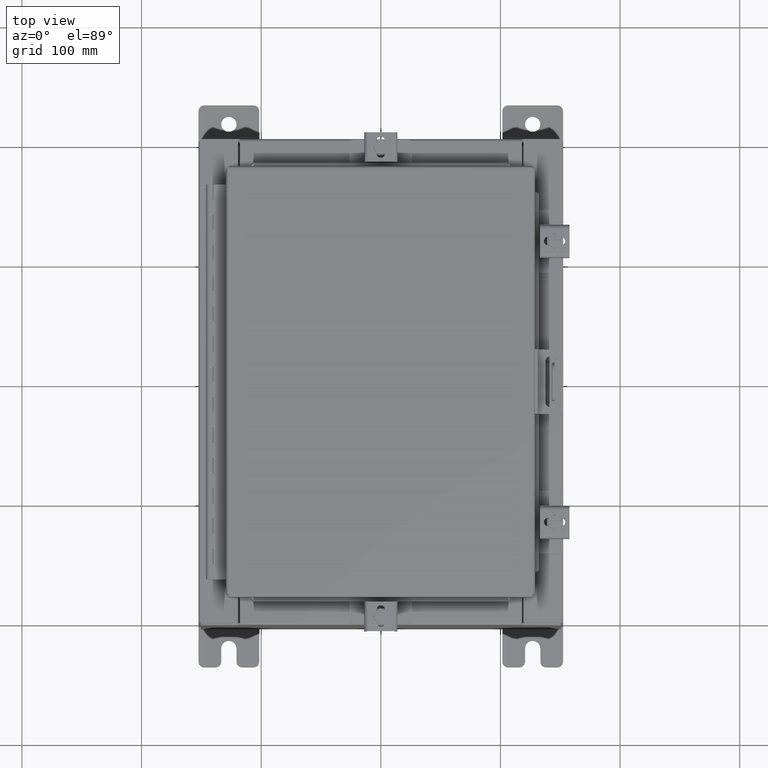
[diagram: clean part render]
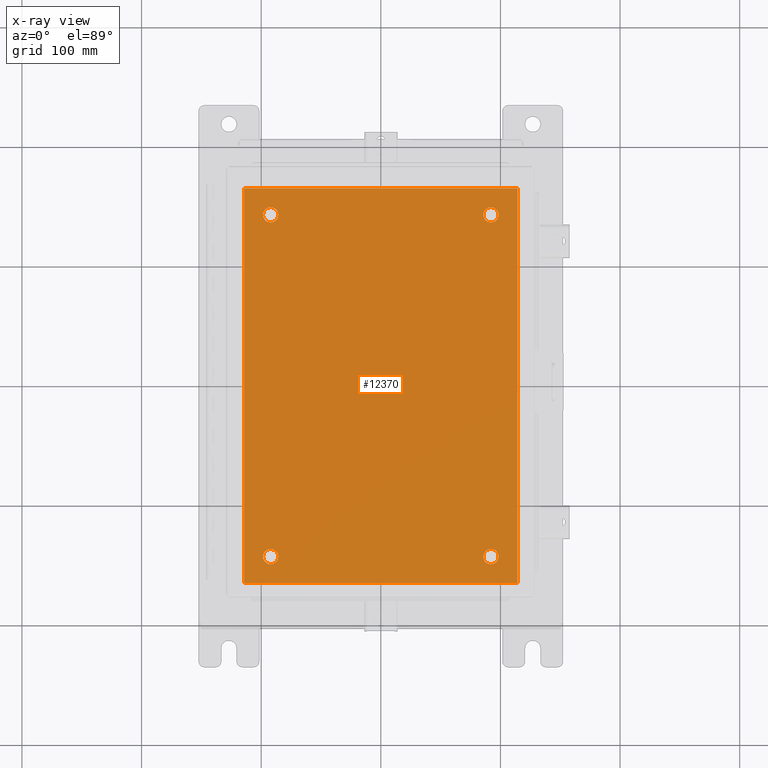
[diagram: x-ray — body ghosted, one internal face saturated and labeled with its STEP entity id]
A machine part, top view, then the same camera in x-ray: the body is ghosted and one INTERNAL B-rep face — a face not visible from any outside direction — is saturated and labeled: STEP entity #12370.
In plain terms, the highlighted planar face has unit normal (0, 0, -1).
Its self-contained STEP definition (entity closure, byte-faithful):
#40 = ORIENTED_EDGE ( 'NONE', *, *, #11947, .T. ) ;
#561 = VERTEX_POINT ( 'NONE', #6362 ) ;
#918 = AXIS2_PLACEMENT_3D ( 'NONE', #21486, #14044, #1993 ) ;
#1088 = CARTESIAN_POINT ( 'NONE',  ( 3.375000000000001800, 5.625000000000003600, -0.1039999999999999800 ) ) ;
#1142 = LINE ( 'NONE', #10221, #16573 ) ;
#1341 = EDGE_LOOP ( 'NONE', ( #40, #19938 ) ) ;
#1547 = CARTESIAN_POINT ( 'NONE',  ( 4.500000000000001800, -6.499999999999999100, -0.1039999999999999800 ) ) ;
#1993 = DIRECTION ( 'NONE',  ( -1.000000000000000000, 0.0000000000000000000, 0.0000000000000000000 ) ) ;
#2462 = ORIENTED_EDGE ( 'NONE', *, *, #8841, .F. ) ;
#2966 = CARTESIAN_POINT ( 'NONE',  ( 3.625000000000000400, 5.625000000000003600, -0.1039999999999999800 ) ) ;
#3560 = AXIS2_PLACEMENT_3D ( 'NONE', #10945, #24986, #12961 ) ;
#3732 = EDGE_LOOP ( 'NONE', ( #24709, #9158 ) ) ;
#3984 = VECTOR ( 'NONE', #7359, 39.37007874015748100 ) ;
#4015 = CARTESIAN_POINT ( 'NONE',  ( -4.499999999999998200, 6.500000000000000900, -0.1039999999999999800 ) ) ;
#4094 = DIRECTION ( 'NONE',  ( -0.0000000000000000000, -0.0000000000000000000, 1.000000000000000000 ) ) ;
#4343 = EDGE_CURVE ( 'NONE', #24921, #20582, #16952, .T. ) ;
#4629 = LINE ( 'NONE', #21497, #3984 ) ;
#4800 = FACE_OUTER_BOUND ( 'NONE', #23533, .T. ) ;
#4844 = AXIS2_PLACEMENT_3D ( 'NONE', #16127, #4094, #18162 ) ;
#4985 = DIRECTION ( 'NONE',  ( -1.000000000000000000, 0.0000000000000000000, 0.0000000000000000000 ) ) ;
#5132 = EDGE_CURVE ( 'NONE', #24403, #23684, #20059, .T. ) ;
#5417 = FACE_BOUND ( 'NONE', #6522, .T. ) ;
#5823 = ORIENTED_EDGE ( 'NONE', *, *, #17697, .T. ) ;
#6057 = DIRECTION ( 'NONE',  ( -0.0000000000000000000, -0.0000000000000000000, 1.000000000000000000 ) ) ;
#6230 = DIRECTION ( 'NONE',  ( -0.0000000000000000000, -1.000000000000000000, -0.0000000000000000000 ) ) ;
#6355 = CIRCLE ( 'NONE', #8115, 0.2499999999999998100 ) ;
#6362 = CARTESIAN_POINT ( 'NONE',  ( -3.375000000000000400, 5.625000000000003600, -0.1039999999999999800 ) ) ;
#6411 = CARTESIAN_POINT ( 'NONE',  ( 3.625000000000000400, 5.625000000000003600, -0.1039999999999999800 ) ) ;
#6522 = EDGE_LOOP ( 'NONE', ( #5823, #8486 ) ) ;
#7359 = DIRECTION ( 'NONE',  ( -1.000000000000000000, -0.0000000000000000000, -0.0000000000000000000 ) ) ;
#7670 = ORIENTED_EDGE ( 'NONE', *, *, #22426, .F. ) ;
#7724 = ORIENTED_EDGE ( 'NONE', *, *, #13480, .T. ) ;
#7817 = CARTESIAN_POINT ( 'NONE',  ( 3.375000000000001800, -5.625000000000003600, -0.1039999999999999800 ) ) ;
#8104 = CIRCLE ( 'NONE', #4844, 0.2499999999999998100 ) ;
#8115 = AXIS2_PLACEMENT_3D ( 'NONE', #22365, #10332, #24382 ) ;
#8189 = DIRECTION ( 'NONE',  ( 0.0000000000000000000, 1.000000000000000000, 0.0000000000000000000 ) ) ;
#8200 = CIRCLE ( 'NONE', #25330, 0.2499999999999987000 ) ;
#8265 = CARTESIAN_POINT ( 'NONE',  ( 3.625000000000000400, -5.625000000000003600, -0.1039999999999999800 ) ) ;
#8447 = DIRECTION ( 'NONE',  ( -1.000000000000000000, 0.0000000000000000000, 0.0000000000000000000 ) ) ;
#8486 = ORIENTED_EDGE ( 'NONE', *, *, #14001, .T. ) ;
#8841 = EDGE_CURVE ( 'NONE', #11523, #10733, #4629, .T. ) ;
#9158 = ORIENTED_EDGE ( 'NONE', *, *, #18268, .T. ) ;
#9392 = CIRCLE ( 'NONE', #21162, 0.2499999999999998100 ) ;
#10154 = FACE_BOUND ( 'NONE', #1341, .T. ) ;
#10221 = CARTESIAN_POINT ( 'NONE',  ( 4.500000000000001800, -6.499999999999999100, -0.1039999999999999800 ) ) ;
#10270 = EDGE_CURVE ( 'NONE', #15781, #21377, #15862, .T. ) ;
#10294 = DIRECTION ( 'NONE',  ( -1.000000000000000000, 0.0000000000000000000, 0.0000000000000000000 ) ) ;
#10332 = DIRECTION ( 'NONE',  ( -0.0000000000000000000, -0.0000000000000000000, 1.000000000000000000 ) ) ;
#10471 = DIRECTION ( 'NONE',  ( -1.000000000000000000, 0.0000000000000000000, -0.0000000000000000000 ) ) ;
#10583 = ORIENTED_EDGE ( 'NONE', *, *, #5132, .T. ) ;
#10733 = VERTEX_POINT ( 'NONE', #4015 ) ;
#10945 = CARTESIAN_POINT ( 'NONE',  ( 3.625000000000000400, -5.625000000000003600, -0.1039999999999999800 ) ) ;
#11523 = VERTEX_POINT ( 'NONE', #15602 ) ;
#11748 = EDGE_CURVE ( 'NONE', #20803, #19145, #6355, .T. ) ;
#11947 = EDGE_CURVE ( 'NONE', #21377, #15781, #13280, .T. ) ;
#12139 = VECTOR ( 'NONE', #6230, 39.37007874015748100 ) ;
#12370 = ADVANCED_FACE ( 'NONE', ( #15481, #10154, #20829, #5417, #4800 ), #16443, .T. ) ;
#12451 = DIRECTION ( 'NONE',  ( 1.000000000000000000, 0.0000000000000000000, 0.0000000000000000000 ) ) ;
#12773 = LINE ( 'NONE', #14224, #12139 ) ;
#12909 = CIRCLE ( 'NONE', #918, 0.2499999999999998100 ) ;
#12961 = DIRECTION ( 'NONE',  ( -1.000000000000000000, 0.0000000000000000000, 0.0000000000000000000 ) ) ;
#13280 = CIRCLE ( 'NONE', #3560, 0.2499999999999987000 ) ;
#13480 = EDGE_CURVE ( 'NONE', #23684, #24403, #8200, .T. ) ;
#13576 = VERTEX_POINT ( 'NONE', #14775 ) ;
#14001 = EDGE_CURVE ( 'NONE', #13576, #561, #12909, .T. ) ;
#14044 = DIRECTION ( 'NONE',  ( -0.0000000000000000000, -0.0000000000000000000, 1.000000000000000000 ) ) ;
#14224 = CARTESIAN_POINT ( 'NONE',  ( -4.499999999999998200, -6.499999999999999100, -0.1039999999999999800 ) ) ;
#14371 = CARTESIAN_POINT ( 'NONE',  ( -3.375000000000000400, -5.625000000000003600, -0.1039999999999999800 ) ) ;
#14775 = CARTESIAN_POINT ( 'NONE',  ( -3.875000000000000000, 5.625000000000003600, -0.1039999999999999800 ) ) ;
#15218 = CARTESIAN_POINT ( 'NONE',  ( -3.875000000000000000, -5.625000000000003600, -0.1039999999999999800 ) ) ;
#15481 = FACE_BOUND ( 'NONE', #3732, .T. ) ;
#15602 = CARTESIAN_POINT ( 'NONE',  ( 4.500000000000001800, 6.500000000000000900, -0.1039999999999999800 ) ) ;
#15781 = VERTEX_POINT ( 'NONE', #7817 ) ;
#15862 = CIRCLE ( 'NONE', #20556, 0.2499999999999987000 ) ;
#16127 = CARTESIAN_POINT ( 'NONE',  ( -3.625000000000000400, -5.625000000000003600, -0.1039999999999999800 ) ) ;
#16179 = CARTESIAN_POINT ( 'NONE',  ( 3.874999999999999100, 5.625000000000003600, -0.1039999999999999800 ) ) ;
#16443 = PLANE ( 'NONE',  #19240 ) ;
#16573 = VECTOR ( 'NONE', #8189, 39.37007874015748100 ) ;
#16952 = LINE ( 'NONE', #20414, #21660 ) ;
#17034 = DIRECTION ( 'NONE',  ( -0.0000000000000000000, -0.0000000000000000000, 1.000000000000000000 ) ) ;
#17697 = EDGE_CURVE ( 'NONE', #561, #13576, #9392, .T. ) ;
#18043 = ORIENTED_EDGE ( 'NONE', *, *, #21738, .F. ) ;
#18106 = CARTESIAN_POINT ( 'NONE',  ( -3.625000000000000400, 5.625000000000003600, -0.1039999999999999800 ) ) ;
#18162 = DIRECTION ( 'NONE',  ( -1.000000000000000000, 0.0000000000000000000, 0.0000000000000000000 ) ) ;
#18194 = CARTESIAN_POINT ( 'NONE',  ( 3.874999999999999100, -5.625000000000003600, -0.1039999999999999800 ) ) ;
#18268 = EDGE_CURVE ( 'NONE', #19145, #20803, #8104, .T. ) ;
#18781 = AXIS2_PLACEMENT_3D ( 'NONE', #2966, #17034, #4985 ) ;
#19145 = VERTEX_POINT ( 'NONE', #15218 ) ;
#19240 = AXIS2_PLACEMENT_3D ( 'NONE', #22507, #20405, #10471 ) ;
#19938 = ORIENTED_EDGE ( 'NONE', *, *, #10270, .T. ) ;
#20059 = CIRCLE ( 'NONE', #18781, 0.2499999999999987000 ) ;
#20130 = DIRECTION ( 'NONE',  ( -1.000000000000000000, 0.0000000000000000000, 0.0000000000000000000 ) ) ;
#20340 = ORIENTED_EDGE ( 'NONE', *, *, #4343, .F. ) ;
#20405 = DIRECTION ( 'NONE',  ( 0.0000000000000000000, 0.0000000000000000000, -1.000000000000000000 ) ) ;
#20414 = CARTESIAN_POINT ( 'NONE',  ( -4.499999999999998200, -6.499999999999999100, -0.1039999999999999800 ) ) ;
#20473 = DIRECTION ( 'NONE',  ( -0.0000000000000000000, -0.0000000000000000000, 1.000000000000000000 ) ) ;
#20556 = AXIS2_PLACEMENT_3D ( 'NONE', #8265, #22328, #10294 ) ;
#20582 = VERTEX_POINT ( 'NONE', #1547 ) ;
#20803 = VERTEX_POINT ( 'NONE', #14371 ) ;
#20829 = FACE_BOUND ( 'NONE', #25619, .T. ) ;
#21162 = AXIS2_PLACEMENT_3D ( 'NONE', #18106, #6057, #20130 ) ;
#21377 = VERTEX_POINT ( 'NONE', #18194 ) ;
#21486 = CARTESIAN_POINT ( 'NONE',  ( -3.625000000000000400, 5.625000000000003600, -0.1039999999999999800 ) ) ;
#21497 = CARTESIAN_POINT ( 'NONE',  ( -4.499999999999998200, 6.500000000000000900, -0.1039999999999999800 ) ) ;
#21660 = VECTOR ( 'NONE', #12451, 39.37007874015748100 ) ;
#21738 = EDGE_CURVE ( 'NONE', #20582, #11523, #1142, .T. ) ;
#22328 = DIRECTION ( 'NONE',  ( -0.0000000000000000000, -0.0000000000000000000, 1.000000000000000000 ) ) ;
#22365 = CARTESIAN_POINT ( 'NONE',  ( -3.625000000000000400, -5.625000000000003600, -0.1039999999999999800 ) ) ;
#22426 = EDGE_CURVE ( 'NONE', #10733, #24921, #12773, .T. ) ;
#22507 = CARTESIAN_POINT ( 'NONE',  ( 0.0000000000000000000, 0.0000000000000000000, -0.1039999999999999800 ) ) ;
#23533 = EDGE_LOOP ( 'NONE', ( #18043, #20340, #7670, #2462 ) ) ;
#23684 = VERTEX_POINT ( 'NONE', #16179 ) ;
#24382 = DIRECTION ( 'NONE',  ( -1.000000000000000000, 0.0000000000000000000, 0.0000000000000000000 ) ) ;
#24403 = VERTEX_POINT ( 'NONE', #1088 ) ;
#24709 = ORIENTED_EDGE ( 'NONE', *, *, #11748, .T. ) ;
#24797 = CARTESIAN_POINT ( 'NONE',  ( -4.499999999999998200, -6.499999999999999100, -0.1039999999999999800 ) ) ;
#24921 = VERTEX_POINT ( 'NONE', #24797 ) ;
#24986 = DIRECTION ( 'NONE',  ( -0.0000000000000000000, -0.0000000000000000000, 1.000000000000000000 ) ) ;
#25330 = AXIS2_PLACEMENT_3D ( 'NONE', #6411, #20473, #8447 ) ;
#25619 = EDGE_LOOP ( 'NONE', ( #7724, #10583 ) ) ;